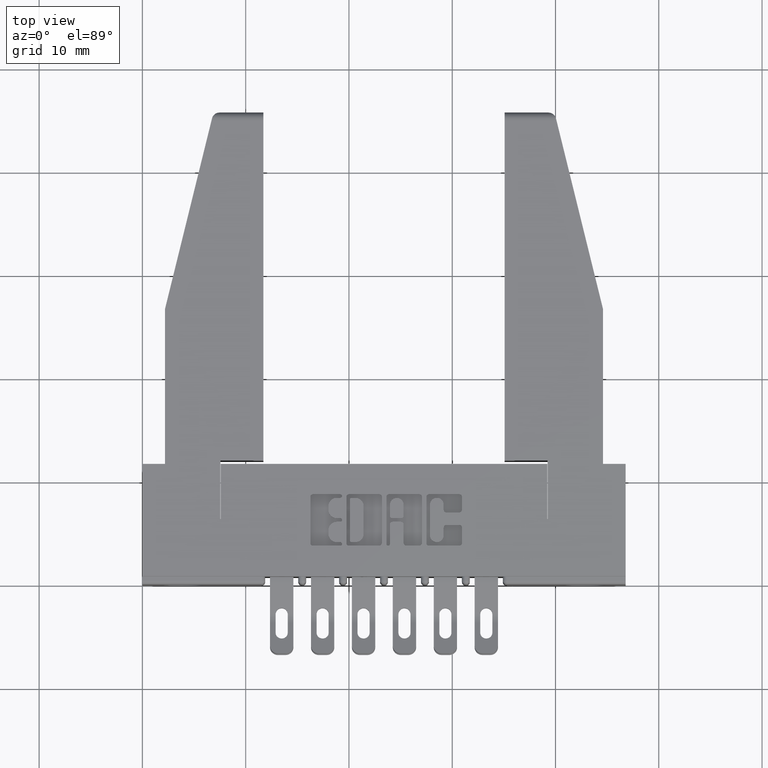
[diagram: clean part render]
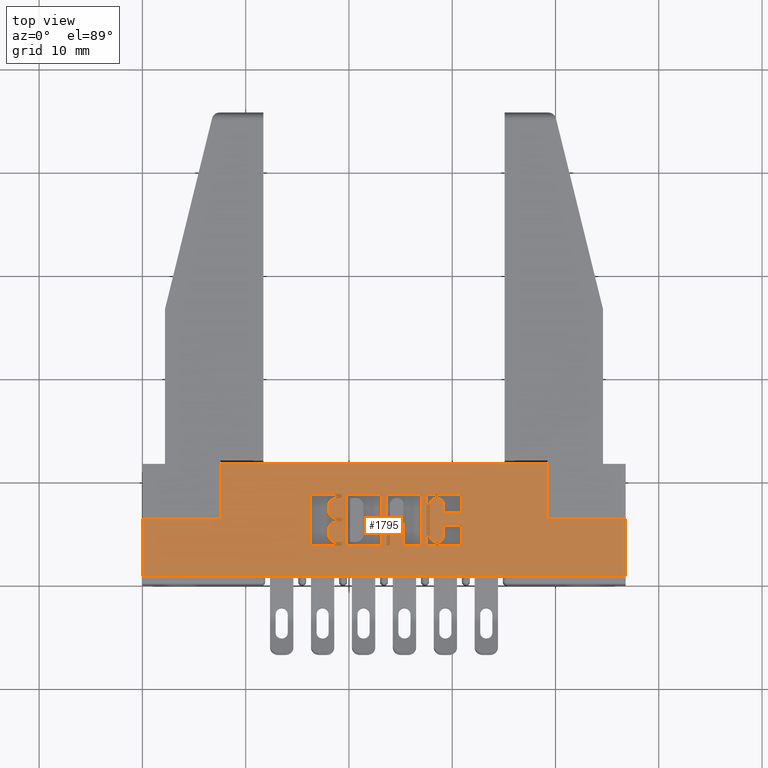
[diagram: same view with one face highlighted and labeled with its STEP entity id]
A machine part, top view. The second image highlights one B-rep face of the part: STEP entity #1795.
In plain terms, the highlighted planar face has unit normal (0, 0, -1).
Its self-contained STEP definition (entity closure, byte-faithful):
#20 = VERTEX_POINT ( 'NONE', #10503 ) ;
#69 = EDGE_CURVE ( 'NONE', #13944, #2360, #13535, .T. ) ;
#70 = DIRECTION ( 'NONE',  ( 1.000000000000000000, 0.0000000000000000000, 0.0000000000000000000 ) ) ;
#81 = EDGE_CURVE ( 'NONE', #10291, #6653, #4121, .T. ) ;
#84 = DIRECTION ( 'NONE',  ( -1.000000000000000000, 0.0000000000000000000, 0.0000000000000000000 ) ) ;
#92 = ORIENTED_EDGE ( 'NONE', *, *, #12675, .F. ) ;
#100 = DIRECTION ( 'NONE',  ( 0.0000000000000000000, -1.000000000000000000, 0.0000000000000000000 ) ) ;
#110 = VECTOR ( 'NONE', #12927, 39.37007874015748100 ) ;
#172 = CARTESIAN_POINT ( 'NONE',  ( 0.7541336065353100300, 0.2523709691426868100, 0.0000000000000000000 ) ) ;
#196 = VERTEX_POINT ( 'NONE', #1103 ) ;
#234 = ORIENTED_EDGE ( 'NONE', *, *, #6462, .F. ) ;
#246 = DIRECTION ( 'NONE',  ( 1.000000000000000000, 0.0000000000000000000, 0.0000000000000000000 ) ) ;
#318 = CIRCLE ( 'NONE', #12551, 0.006870969142663458500 ) ;
#332 = CARTESIAN_POINT ( 'NONE',  ( 1.055229290037011500, 0.3338410318342133800, 0.0000000000000000000 ) ) ;
#338 = EDGE_CURVE ( 'NONE', #8183, #8594, #3945, .T. ) ;
#344 = CARTESIAN_POINT ( 'NONE',  ( 0.0000000000000000000, 0.03100000000000000000, 0.0000000000000000000 ) ) ;
#356 = VECTOR ( 'NONE', #3589, 39.37007874015748100 ) ;
#383 = EDGE_CURVE ( 'NONE', #6653, #2820, #5488, .T. ) ;
#410 = ORIENTED_EDGE ( 'NONE', *, *, #10825, .F. ) ;
#437 = VERTEX_POINT ( 'NONE', #12326 ) ;
#446 = DIRECTION ( 'NONE',  ( -0.0000000000000000000, 0.0000000000000000000, 1.000000000000000000 ) ) ;
#473 = VERTEX_POINT ( 'NONE', #9406 ) ;
#547 = CIRCLE ( 'NONE', #11946, 0.03141014465215624000 ) ;
#551 = ORIENTED_EDGE ( 'NONE', *, *, #10610, .F. ) ;
#560 = LINE ( 'NONE', #9660, #11173 ) ;
#580 = ORIENTED_EDGE ( 'NONE', *, *, #11780, .F. ) ;
#592 = EDGE_CURVE ( 'NONE', #9579, #9090, #4108, .T. ) ;
#612 = DIRECTION ( 'NONE',  ( 1.000000000000000000, 0.0000000000000000000, 0.0000000000000000000 ) ) ;
#626 = VERTEX_POINT ( 'NONE', #4219 ) ;
#630 = ORIENTED_EDGE ( 'NONE', *, *, #7765, .T. ) ;
#647 = CARTESIAN_POINT ( 'NONE',  ( 0.6400264404161154500, 0.3338410318342131000, 0.0000000000000000000 ) ) ;
#659 = DIRECTION ( 'NONE',  ( 0.0000000000000000000, -1.000000000000000000, 0.0000000000000000000 ) ) ;
#738 = VERTEX_POINT ( 'NONE', #172 ) ;
#793 = ORIENTED_EDGE ( 'NONE', *, *, #6871, .F. ) ;
#800 = AXIS2_PLACEMENT_3D ( 'NONE', #9382, #6424, #13811 ) ;
#894 = CIRCLE ( 'NONE', #1281, 0.009815670203806754800 ) ;
#918 = ORIENTED_EDGE ( 'NONE', *, *, #2031, .T. ) ;
#933 = DIRECTION ( 'NONE',  ( 1.000000000000000000, 0.0000000000000000000, 0.0000000000000000000 ) ) ;
#957 = VERTEX_POINT ( 'NONE', #3497 ) ;
#1052 = CARTESIAN_POINT ( 'NONE',  ( 1.065044960240806700, 0.3338410318342039900, 0.0000000000000000000 ) ) ;
#1059 = CIRCLE ( 'NONE', #9379, 0.03141014465218178200 ) ;
#1103 = CARTESIAN_POINT ( 'NONE',  ( 0.9860288151001881400, 0.2386290308573527900, 0.0000000000000000000 ) ) ;
#1110 = CARTESIAN_POINT ( 'NONE',  ( 1.217678631909972200, 0.0000000000000000000, 0.0000000000000000000 ) ) ;
#1113 = CIRCLE ( 'NONE', #3084, 0.009815670203840902800 ) ;
#1122 = CARTESIAN_POINT ( 'NONE',  ( 1.095964321382818300, 0.0000000000000000000, 0.0000000000000000000 ) ) ;
#1146 = ORIENTED_EDGE ( 'NONE', *, *, #592, .F. ) ;
#1149 = DIRECTION ( 'NONE',  ( -1.000000000000000000, 0.0000000000000000000, -0.0000000000000000000 ) ) ;
#1164 = DIRECTION ( 'NONE',  ( 0.0000000000000000000, 1.000000000000000000, -0.0000000000000000000 ) ) ;
#1172 = VERTEX_POINT ( 'NONE', #12540 ) ;
#1184 = VECTOR ( 'NONE', #4339, 39.37007874015748100 ) ;
#1189 = PLANE ( 'NONE',  #7362 ) ;
#1216 = DIRECTION ( 'NONE',  ( 0.0000000000000000000, 1.000000000000000000, -0.0000000000000000000 ) ) ;
#1281 = AXIS2_PLACEMENT_3D ( 'NONE', #3288, #4411, #11974 ) ;
#1289 = EDGE_CURVE ( 'NONE', #7040, #8303, #8314, .T. ) ;
#1325 = CARTESIAN_POINT ( 'NONE',  ( 0.0000000000000000000, 0.3436567020380540400, 0.0000000000000000000 ) ) ;
#1359 = CARTESIAN_POINT ( 'NONE',  ( 0.7541336065353100300, 0.2455000000000233400, 0.0000000000000000000 ) ) ;
#1374 = CIRCLE ( 'NONE', #12454, 0.006870969142648570200 ) ;
#1380 = EDGE_CURVE ( 'NONE', #7696, #13242, #12340, .T. ) ;
#1407 = CARTESIAN_POINT ( 'NONE',  ( 0.9124112885716689800, 0.1571589681657929700, 0.0000000000000000000 ) ) ;
#1445 = VERTEX_POINT ( 'NONE', #5466 ) ;
#1494 = DIRECTION ( 'NONE',  ( -0.0000000000000000000, 0.0000000000000000000, 1.000000000000000000 ) ) ;
#1499 = CARTESIAN_POINT ( 'NONE',  ( 0.9124112885716689800, 0.3338410318342131000, 0.0000000000000000000 ) ) ;
#1523 = CIRCLE ( 'NONE', #10677, 0.009815670203803340800 ) ;
#1547 = VERTEX_POINT ( 'NONE', #7520 ) ;
#1575 = CIRCLE ( 'NONE', #7324, 0.009815670203806754800 ) ;
#1673 = CARTESIAN_POINT ( 'NONE',  ( 1.148478156973179000, 0.2170345564089716800, 0.0000000000000000000 ) ) ;
#1675 = AXIS2_PLACEMENT_3D ( 'NONE', #6403, #7244, #2955 ) ;
#1676 = EDGE_CURVE ( 'NONE', #10910, #12992, #11341, .T. ) ;
#1679 = AXIS2_PLACEMENT_3D ( 'NONE', #6863, #3598, #1702 ) ;
#1685 = EDGE_LOOP ( 'NONE', ( #10451, #7660, #10972, #7263, #11297, #3204, #5583, #6173, #2494, #8694, #9508, #6481, #3805, #11244, #2145, #551, #13052, #7396, #410, #11073 ) ) ;
#1702 = DIRECTION ( 'NONE',  ( 1.000000000000000000, 0.0000000000000000000, 0.0000000000000000000 ) ) ;
#1707 = VECTOR ( 'NONE', #7559, 39.37007874015748100 ) ;
#1770 = DIRECTION ( 'NONE',  ( -0.0000000000000000000, 0.0000000000000000000, 1.000000000000000000 ) ) ;
#1795 = ADVANCED_FACE ( 'NONE', ( #11699, #11865, #5623, #6126, #8472 ), #1189, .F. ) ;
#1797 = LINE ( 'NONE', #10832, #10535 ) ;
#1833 = CARTESIAN_POINT ( 'NONE',  ( 0.9531463199174502500, 0.2386290308573516500, 0.0000000000000000000 ) ) ;
#1885 = CARTESIAN_POINT ( 'NONE',  ( 0.2979999999999999900, 0.2500000000000000600, 0.0000000000000000000 ) ) ;
#1890 = DIRECTION ( 'NONE',  ( 0.0000000000000000000, -1.000000000000000000, 0.0000000000000000000 ) ) ;
#1922 = DIRECTION ( 'NONE',  ( -0.0000000000000000000, 0.0000000000000000000, 1.000000000000000000 ) ) ;
#1976 = CARTESIAN_POINT ( 'NONE',  ( 1.544000000000000300, 0.2500000000000000600, 0.0000000000000000000 ) ) ;
#1988 = DIRECTION ( 'NONE',  ( 0.0000000000000000000, 1.000000000000000000, -0.0000000000000000000 ) ) ;
#1995 = VERTEX_POINT ( 'NONE', #2732 ) ;
#2031 = EDGE_CURVE ( 'NONE', #4791, #957, #7109, .T. ) ;
#2034 = DIRECTION ( 'NONE',  ( 1.000000000000000000, 0.0000000000000000000, 0.0000000000000000000 ) ) ;
#2083 = VERTEX_POINT ( 'NONE', #6869 ) ;
#2106 = CARTESIAN_POINT ( 'NONE',  ( 0.7610045756779734200, 0.2455000000000233400, 0.0000000000000000000 ) ) ;
#2145 = ORIENTED_EDGE ( 'NONE', *, *, #6381, .F. ) ;
#2152 = VECTOR ( 'NONE', #11311, 39.37007874015748100 ) ;
#2187 = VERTEX_POINT ( 'NONE', #9754 ) ;
#2194 = CARTESIAN_POINT ( 'NONE',  ( 0.9025956183678620600, 0.1473432979619861700, 0.0000000000000000000 ) ) ;
#2293 = ORIENTED_EDGE ( 'NONE', *, *, #11564, .F. ) ;
#2321 = EDGE_LOOP ( 'NONE', ( #4016, #5367, #4374, #4749, #2293, #4989, #11586, #12059 ) ) ;
#2360 = VERTEX_POINT ( 'NONE', #9982 ) ;
#2381 = CARTESIAN_POINT ( 'NONE',  ( 0.7541336064154143800, 0.1473432979619887000, 0.0000000000000000000 ) ) ;
#2410 = VECTOR ( 'NONE', #1988, 39.37007874015748100 ) ;
#2493 = DIRECTION ( 'NONE',  ( 1.000000000000000000, 6.876017002796124400E-015, 0.0000000000000000000 ) ) ;
#2494 = ORIENTED_EDGE ( 'NONE', *, *, #12191, .F. ) ;
#2506 = VERTEX_POINT ( 'NONE', #9050 ) ;
#2562 = CIRCLE ( 'NONE', #13335, 0.009815670203805936000 ) ;
#2603 = CARTESIAN_POINT ( 'NONE',  ( 1.005660155507788000, 0.1571589681657908600, 0.0000000000000000000 ) ) ;
#2621 = VECTOR ( 'NONE', #8941, 39.37007874015748100 ) ;
#2636 = AXIS2_PLACEMENT_3D ( 'NONE', #10434, #3889, #7284 ) ;
#2637 = LINE ( 'NONE', #5277, #3142 ) ;
#2661 = CARTESIAN_POINT ( 'NONE',  ( 0.9433306497136468800, 0.2288133606535486000, 0.0000000000000000000 ) ) ;
#2685 = DIRECTION ( 'NONE',  ( 1.000000000000000000, 0.0000000000000000000, 0.0000000000000000000 ) ) ;
#2698 = CARTESIAN_POINT ( 'NONE',  ( 1.082222383097458700, 0.1571589681657929700, 0.0000000000000000000 ) ) ;
#2732 = CARTESIAN_POINT ( 'NONE',  ( 1.148478156973165900, 0.3036578454992628900, 0.0000000000000000000 ) ) ;
#2820 = VERTEX_POINT ( 'NONE', #13045 ) ;
#2871 = CIRCLE ( 'NONE', #7833, 0.009815670203806891800 ) ;
#2891 = DIRECTION ( 'NONE',  ( 1.000000000000000000, 0.0000000000000000000, 0.0000000000000000000 ) ) ;
#2951 = CARTESIAN_POINT ( 'NONE',  ( 1.082222383097458700, 0.3338410318342131000, 0.0000000000000000000 ) ) ;
#2955 = DIRECTION ( 'NONE',  ( 1.000000000000000000, 0.0000000000000000000, 0.0000000000000000000 ) ) ;
#3024 = ORIENTED_EDGE ( 'NONE', *, *, #6329, .F. ) ;
#3029 = DIRECTION ( 'NONE',  ( 1.000000000000000000, 0.0000000000000000000, 0.0000000000000000000 ) ) ;
#3051 = EDGE_CURVE ( 'NONE', #5916, #3147, #2871, .T. ) ;
#3084 = AXIS2_PLACEMENT_3D ( 'NONE', #6558, #4338, #10930 ) ;
#3118 = CARTESIAN_POINT ( 'NONE',  ( -0.0000000000000000000, 0.3436567020380095800, 0.0000000000000000000 ) ) ;
#3126 = CARTESIAN_POINT ( 'NONE',  ( 0.9295887114283308800, 0.3338410318342131000, 0.0000000000000000000 ) ) ;
#3142 = VECTOR ( 'NONE', #7574, 39.37007874015748100 ) ;
#3147 = VERTEX_POINT ( 'NONE', #1407 ) ;
#3185 = DIRECTION ( 'NONE',  ( 1.000000000000000000, 0.0000000000000000000, 0.0000000000000000000 ) ) ;
#3186 = CARTESIAN_POINT ( 'NONE',  ( 0.9394043816321274700, 0.3338410318342131000, 0.0000000000000000000 ) ) ;
#3204 = ORIENTED_EDGE ( 'NONE', *, *, #8552, .F. ) ;
#3211 = ORIENTED_EDGE ( 'NONE', *, *, #7206, .F. ) ;
#3228 = CARTESIAN_POINT ( 'NONE',  ( 1.148478156973179000, 0.1873421540424559900, 0.0000000000000000000 ) ) ;
#3237 = VECTOR ( 'NONE', #1890, 39.37007874015748100 ) ;
#3261 = EDGE_CURVE ( 'NONE', #9215, #9579, #9577, .T. ) ;
#3273 = CARTESIAN_POINT ( 'NONE',  ( 1.122221239177992200, 0.3036578459575325900, 0.0000000000000000000 ) ) ;
#3288 = CARTESIAN_POINT ( 'NONE',  ( 1.092038053301265200, 0.1571589681657929700, 0.0000000000000000000 ) ) ;
#3317 = VECTOR ( 'NONE', #1216, 39.37007874015748100 ) ;
#3414 = EDGE_CURVE ( 'NONE', #10034, #11051, #7049, .T. ) ;
#3438 = LINE ( 'NONE', #1110, #2621 ) ;
#3463 = DIRECTION ( 'NONE',  ( -1.000000000000000000, 0.0000000000000000000, 0.0000000000000000000 ) ) ;
#3493 = DIRECTION ( 'NONE',  ( -0.0000000000000000000, 0.0000000000000000000, 1.000000000000000000 ) ) ;
#3495 = VECTOR ( 'NONE', #11478, 39.37007874015748100 ) ;
#3497 = CARTESIAN_POINT ( 'NONE',  ( 0.7406370600050840000, 0.2523709691426868100, 0.0000000000000000000 ) ) ;
#3503 = CARTESIAN_POINT ( 'NONE',  ( 1.158293827176966900, 0.2268502266127605200, 0.0000000000000000000 ) ) ;
#3589 = DIRECTION ( 'NONE',  ( 0.0000000000000000000, 1.000000000000000000, -0.0000000000000000000 ) ) ;
#3598 = DIRECTION ( 'NONE',  ( -0.0000000000000000000, 0.0000000000000000000, 1.000000000000000000 ) ) ;
#3609 = DIRECTION ( 'NONE',  ( -0.0000000000000000000, 0.0000000000000000000, 1.000000000000000000 ) ) ;
#3662 = DIRECTION ( 'NONE',  ( 1.000000000000000000, 0.0000000000000000000, 0.0000000000000000000 ) ) ;
#3699 = CARTESIAN_POINT ( 'NONE',  ( 1.095964321382818300, 0.3036578459575325900, 0.0000000000000000000 ) ) ;
#3702 = ORIENTED_EDGE ( 'NONE', *, *, #3051, .F. ) ;
#3765 = VECTOR ( 'NONE', #100, 39.37007874015748100 ) ;
#3779 = CARTESIAN_POINT ( 'NONE',  ( 0.9025956183678961500, 0.3436567020380540400, 0.0000000000000000000 ) ) ;
#3805 = ORIENTED_EDGE ( 'NONE', *, *, #383, .F. ) ;
#3820 = CARTESIAN_POINT ( 'NONE',  ( 0.6498421106199380200, 0.3436567020380357200, 0.0000000000000000000 ) ) ;
#3857 = EDGE_CURVE ( 'NONE', #10854, #8583, #13418, .T. ) ;
#3885 = CIRCLE ( 'NONE', #8412, 0.009815670203840084000 ) ;
#3889 = DIRECTION ( 'NONE',  ( -0.0000000000000000000, 0.0000000000000000000, 1.000000000000000000 ) ) ;
#3890 = EDGE_CURVE ( 'NONE', #1445, #5585, #11600, .T. ) ;
#3898 = VECTOR ( 'NONE', #5819, 39.37007874015748100 ) ;
#3915 = DIRECTION ( 'NONE',  ( 1.000000000000000000, 0.0000000000000000000, 0.0000000000000000000 ) ) ;
#3919 = CIRCLE ( 'NONE', #8591, 0.009815670203804980100 ) ;
#3924 = CARTESIAN_POINT ( 'NONE',  ( 0.7541336065353512200, 0.3367857328953892100, 0.0000000000000000000 ) ) ;
#3945 = CIRCLE ( 'NONE', #7707, 0.006870969142663458500 ) ;
#4016 = ORIENTED_EDGE ( 'NONE', *, *, #13117, .F. ) ;
#4067 = AXIS2_PLACEMENT_3D ( 'NONE', #11703, #8478, #2034 ) ;
#4103 = VERTEX_POINT ( 'NONE', #10528 ) ;
#4108 = CIRCLE ( 'NONE', #12054, 0.009815670203822599700 ) ;
#4118 = CARTESIAN_POINT ( 'NONE',  ( 0.7541336065353512200, 0.3436567020380357200, 0.0000000000000000000 ) ) ;
#4121 = LINE ( 'NONE', #6368, #5141 ) ;
#4219 = CARTESIAN_POINT ( 'NONE',  ( 0.7092269153529278100, 0.2072188862052035400, 0.0000000000000000000 ) ) ;
#4225 = EDGE_CURVE ( 'NONE', #6489, #5585, #9856, .T. ) ;
#4234 = EDGE_CURVE ( 'NONE', #196, #11007, #7187, .T. ) ;
#4235 = LINE ( 'NONE', #11576, #10472 ) ;
#4255 = CARTESIAN_POINT ( 'NONE',  ( 1.842000000000000100, 0.03100000000000000000, 0.0000000000000000000 ) ) ;
#4338 = DIRECTION ( 'NONE',  ( -0.0000000000000000000, 0.0000000000000000000, 1.000000000000000000 ) ) ;
#4339 = DIRECTION ( 'NONE',  ( 1.000000000000000000, 0.0000000000000000000, 0.0000000000000000000 ) ) ;
#4348 = EDGE_CURVE ( 'NONE', #8509, #10594, #10723, .T. ) ;
#4349 = CIRCLE ( 'NONE', #1675, 0.009815670203841039800 ) ;
#4374 = ORIENTED_EDGE ( 'NONE', *, *, #5012, .F. ) ;
#4406 = CIRCLE ( 'NONE', #2636, 0.006870969142648570200 ) ;
#4411 = DIRECTION ( 'NONE',  ( -0.0000000000000000000, 0.0000000000000000000, 1.000000000000000000 ) ) ;
#4419 = EDGE_CURVE ( 'NONE', #9553, #11749, #5352, .T. ) ;
#4554 = LINE ( 'NONE', #7979, #356 ) ;
#4564 = LINE ( 'NONE', #12396, #3898 ) ;
#4576 = DIRECTION ( 'NONE',  ( 1.000000000000000000, 0.0000000000000000000, 0.0000000000000000000 ) ) ;
#4603 = AXIS2_PLACEMENT_3D ( 'NONE', #12131, #3493, #4576 ) ;
#4609 = DIRECTION ( 'NONE',  ( 1.000000000000000000, 0.0000000000000000000, 0.0000000000000000000 ) ) ;
#4633 = CIRCLE ( 'NONE', #10781, 0.009815670203811535700 ) ;
#4650 = CARTESIAN_POINT ( 'NONE',  ( 0.0000000000000000000, 0.4600000000000000200, 0.0000000000000000000 ) ) ;
#4666 = DIRECTION ( 'NONE',  ( 1.000000000000000000, 0.0000000000000000000, 0.0000000000000000000 ) ) ;
#4706 = CARTESIAN_POINT ( 'NONE',  ( 1.158293827176977400, 0.2842718973050482000, 0.0000000000000000000 ) ) ;
#4749 = ORIENTED_EDGE ( 'NONE', *, *, #5822, .F. ) ;
#4785 = ORIENTED_EDGE ( 'NONE', *, *, #7946, .F. ) ;
#4791 = VERTEX_POINT ( 'NONE', #10511 ) ;
#4820 = DIRECTION ( 'NONE',  ( 1.000000000000000000, 0.0000000000000000000, 0.0000000000000000000 ) ) ;
#4834 = CARTESIAN_POINT ( 'NONE',  ( 1.148478156973179000, 0.0000000000000000000, 0.0000000000000000000 ) ) ;
#4878 = EDGE_CURVE ( 'NONE', #20, #11897, #1797, .T. ) ;
#4909 = DIRECTION ( 'NONE',  ( -0.0000000000000000000, 0.0000000000000000000, 1.000000000000000000 ) ) ;
#4937 = ORIENTED_EDGE ( 'NONE', *, *, #69, .F. ) ;
#4969 = EDGE_CURVE ( 'NONE', #1547, #11444, #3438, .T. ) ;
#4989 = ORIENTED_EDGE ( 'NONE', *, *, #4878, .T. ) ;
#4993 = DIRECTION ( 'NONE',  ( 1.000000000000000000, 0.0000000000000000000, 0.0000000000000000000 ) ) ;
#4999 = DIRECTION ( 'NONE',  ( -1.000000000000000000, 0.0000000000000000000, 0.0000000000000000000 ) ) ;
#5012 = EDGE_CURVE ( 'NONE', #2187, #8583, #7498, .T. ) ;
#5028 = ORIENTED_EDGE ( 'NONE', *, *, #8198, .T. ) ;
#5035 = LINE ( 'NONE', #9990, #7054 ) ;
#5077 = VECTOR ( 'NONE', #5472, 39.37007874015748100 ) ;
#5125 = CARTESIAN_POINT ( 'NONE',  ( 1.842000000000000100, 0.2500000000000000600, 0.0000000000000000000 ) ) ;
#5141 = VECTOR ( 'NONE', #7442, 39.37007874015748100 ) ;
#5171 = VECTOR ( 'NONE', #13066, 39.37007874015748100 ) ;
#5191 = CARTESIAN_POINT ( 'NONE',  ( 1.217678631909940200, 0.0000000000000000000, 0.0000000000000000000 ) ) ;
#5221 = DIRECTION ( 'NONE',  ( -0.0000000000000000000, 1.000000000000000000, -0.0000000000000000000 ) ) ;
#5232 = DIRECTION ( 'NONE',  ( 1.000000000000000000, 0.0000000000000000000, 0.0000000000000000000 ) ) ;
#5238 = CIRCLE ( 'NONE', #7614, 0.02625691779517367100 ) ;
#5277 = CARTESIAN_POINT ( 'NONE',  ( 1.842000000000000100, 0.03100000000000000000, 0.0000000000000000000 ) ) ;
#5315 = VERTEX_POINT ( 'NONE', #5436 ) ;
#5318 = CARTESIAN_POINT ( 'NONE',  ( 1.148478156973165900, 0.2842718973050482000, 0.0000000000000000000 ) ) ;
#5328 = VECTOR ( 'NONE', #659, 39.37007874015748100 ) ;
#5352 = LINE ( 'NONE', #5636, #13580 ) ;
#5367 = ORIENTED_EDGE ( 'NONE', *, *, #3857, .T. ) ;
#5407 = CARTESIAN_POINT ( 'NONE',  ( 0.7406370600051254100, 0.3299147637527386500, 0.0000000000000000000 ) ) ;
#5436 = CARTESIAN_POINT ( 'NONE',  ( 1.207862961706168200, 0.3436567020380540400, 0.0000000000000000000 ) ) ;
#5463 = AXIS2_PLACEMENT_3D ( 'NONE', #7738, #11997, #246 ) ;
#5466 = CARTESIAN_POINT ( 'NONE',  ( 0.9295887114283308800, 0.1542142671046509700, 0.0000000000000000000 ) ) ;
#5472 = DIRECTION ( 'NONE',  ( 0.0000000000000000000, -1.000000000000000000, 0.0000000000000000000 ) ) ;
#5488 = CIRCLE ( 'NONE', #1679, 0.009815670203806345400 ) ;
#5512 = CARTESIAN_POINT ( 'NONE',  ( 1.158293827176977400, 0.2744562271012366300, 0.0000000000000000000 ) ) ;
#5523 = ORIENTED_EDGE ( 'NONE', *, *, #8315, .F. ) ;
#5574 = EDGE_CURVE ( 'NONE', #13308, #10623, #1113, .T. ) ;
#5576 = ORIENTED_EDGE ( 'NONE', *, *, #10120, .F. ) ;
#5583 = ORIENTED_EDGE ( 'NONE', *, *, #11421, .T. ) ;
#5585 = VERTEX_POINT ( 'NONE', #3126 ) ;
#5588 = CARTESIAN_POINT ( 'NONE',  ( 0.9433306497136468800, 0.1542142671046509700, 0.0000000000000000000 ) ) ;
#5622 = LINE ( 'NONE', #8424, #2410 ) ;
#5623 = FACE_OUTER_BOUND ( 'NONE', #2321, .T. ) ;
#5636 = CARTESIAN_POINT ( 'NONE',  ( 0.9433306497136468800, 0.0000000000000000000, 0.0000000000000000000 ) ) ;
#5776 = CARTESIAN_POINT ( 'NONE',  ( 0.0000000000000000000, 0.3436567020380357200, 0.0000000000000000000 ) ) ;
#5819 = DIRECTION ( 'NONE',  ( 1.000000000000000000, 0.0000000000000000000, 0.0000000000000000000 ) ) ;
#5822 = EDGE_CURVE ( 'NONE', #11638, #2187, #7643, .T. ) ;
#5840 = VERTEX_POINT ( 'NONE', #12630 ) ;
#5901 = CIRCLE ( 'NONE', #5463, 0.02625691779518022500 ) ;
#5916 = VERTEX_POINT ( 'NONE', #2194 ) ;
#5970 = DIRECTION ( 'NONE',  ( -0.0000000000000000000, 0.0000000000000000000, 1.000000000000000000 ) ) ;
#5988 = EDGE_CURVE ( 'NONE', #1995, #9225, #560, .T. ) ;
#6125 = VECTOR ( 'NONE', #84, 39.37007874015748100 ) ;
#6126 = FACE_BOUND ( 'NONE', #6383, .T. ) ;
#6173 = ORIENTED_EDGE ( 'NONE', *, *, #13968, .F. ) ;
#6194 = EDGE_CURVE ( 'NONE', #473, #1547, #3919, .T. ) ;
#6215 = VECTOR ( 'NONE', #4999, 39.37007874015748100 ) ;
#6246 = ORIENTED_EDGE ( 'NONE', *, *, #13666, .F. ) ;
#6272 = LINE ( 'NONE', #8320, #3237 ) ;
#6287 = CARTESIAN_POINT ( 'NONE',  ( 0.0000000000000000000, 0.2500000000000000600, 0.0000000000000000000 ) ) ;
#6327 = VECTOR ( 'NONE', #10928, 39.37007874015748100 ) ;
#6329 = EDGE_CURVE ( 'NONE', #2360, #1172, #1575, .T. ) ;
#6359 = EDGE_CURVE ( 'NONE', #2506, #626, #5622, .T. ) ;
#6368 = CARTESIAN_POINT ( 'NONE',  ( -0.0000000000000000000, 0.1473432979619861700, 0.0000000000000000000 ) ) ;
#6373 = ORIENTED_EDGE ( 'NONE', *, *, #6359, .F. ) ;
#6381 = EDGE_CURVE ( 'NONE', #11987, #10291, #894, .T. ) ;
#6383 = EDGE_LOOP ( 'NONE', ( #13152, #8194, #3702, #7387, #3024, #4937, #13157, #10298 ) ) ;
#6394 = DIRECTION ( 'NONE',  ( -0.0000000000000000000, 0.0000000000000000000, 1.000000000000000000 ) ) ;
#6402 = VERTEX_POINT ( 'NONE', #5512 ) ;
#6403 = CARTESIAN_POINT ( 'NONE',  ( 0.9025956183678279800, 0.3338410318342129300, 0.0000000000000000000 ) ) ;
#6424 = DIRECTION ( 'NONE',  ( -0.0000000000000000000, 0.0000000000000000000, 1.000000000000000000 ) ) ;
#6441 = VERTEX_POINT ( 'NONE', #6629 ) ;
#6460 = CARTESIAN_POINT ( 'NONE',  ( 1.092038053301265200, 0.1473432979619861700, 0.0000000000000000000 ) ) ;
#6462 = EDGE_CURVE ( 'NONE', #4103, #8727, #10497, .T. ) ;
#6470 = CARTESIAN_POINT ( 'NONE',  ( 0.0000000000000000000, 0.4600000000000000200, 0.0000000000000000000 ) ) ;
#6481 = ORIENTED_EDGE ( 'NONE', *, *, #10128, .F. ) ;
#6489 = VERTEX_POINT ( 'NONE', #7802 ) ;
#6532 = EDGE_CURVE ( 'NONE', #2083, #626, #547, .T. ) ;
#6534 = VERTEX_POINT ( 'NONE', #9860 ) ;
#6558 = CARTESIAN_POINT ( 'NONE',  ( 1.092038053301299400, 0.3338410318342131000, 0.0000000000000000000 ) ) ;
#6584 = DIRECTION ( 'NONE',  ( -0.0000000000000000000, 0.0000000000000000000, 1.000000000000000000 ) ) ;
#6605 = VECTOR ( 'NONE', #11828, 39.37007874015748100 ) ;
#6629 = CARTESIAN_POINT ( 'NONE',  ( 1.095964321382818300, 0.1873421540424559900, 0.0000000000000000000 ) ) ;
#6653 = VERTEX_POINT ( 'NONE', #13396 ) ;
#6697 = LINE ( 'NONE', #11142, #8217 ) ;
#6703 = DIRECTION ( 'NONE',  ( 0.0000000000000000000, -1.000000000000000000, 0.0000000000000000000 ) ) ;
#6704 = ORIENTED_EDGE ( 'NONE', *, *, #1676, .F. ) ;
#6711 = ORIENTED_EDGE ( 'NONE', *, *, #4225, .F. ) ;
#6767 = LINE ( 'NONE', #12220, #11151 ) ;
#6843 = EDGE_CURVE ( 'NONE', #5315, #13308, #8966, .T. ) ;
#6863 = CARTESIAN_POINT ( 'NONE',  ( 1.207862961706134300, 0.1571589681657929700, 0.0000000000000000000 ) ) ;
#6866 = ORIENTED_EDGE ( 'NONE', *, *, #338, .F. ) ;
#6869 = CARTESIAN_POINT ( 'NONE',  ( 0.7406370600050840000, 0.2386290308573598100, 0.0000000000000000000 ) ) ;
#6871 = EDGE_CURVE ( 'NONE', #2083, #8183, #11520, .T. ) ;
#6900 = LINE ( 'NONE', #6287, #1184 ) ;
#6917 = DIRECTION ( 'NONE',  ( -0.0000000000000000000, 0.0000000000000000000, 1.000000000000000000 ) ) ;
#6924 = CIRCLE ( 'NONE', #9211, 0.009815670203795690700 ) ;
#6961 = DIRECTION ( 'NONE',  ( 1.000000000000000000, 0.0000000000000000000, 0.0000000000000000000 ) ) ;
#7017 = EDGE_CURVE ( 'NONE', #11345, #10522, #12663, .T. ) ;
#7040 = VERTEX_POINT ( 'NONE', #3779 ) ;
#7042 = DIRECTION ( 'NONE',  ( 1.000000000000000000, 0.0000000000000000000, 0.0000000000000000000 ) ) ;
#7049 = LINE ( 'NONE', #11529, #3495 ) ;
#7053 = EDGE_CURVE ( 'NONE', #6402, #473, #4564, .T. ) ;
#7054 = VECTOR ( 'NONE', #8867, 39.37007874015748100 ) ;
#7068 = CARTESIAN_POINT ( 'NONE',  ( 1.842000000000000100, 0.2500000000000000600, 0.0000000000000000000 ) ) ;
#7089 = EDGE_CURVE ( 'NONE', #3147, #12804, #6767, .T. ) ;
#7109 = CIRCLE ( 'NONE', #10879, 0.03141014465217454400 ) ;
#7139 = CARTESIAN_POINT ( 'NONE',  ( 0.7867707099630101300, 0.3436567020380540400, 0.0000000000000000000 ) ) ;
#7187 = LINE ( 'NONE', #11911, #110 ) ;
#7206 = EDGE_CURVE ( 'NONE', #6534, #4103, #2562, .T. ) ;
#7214 = CARTESIAN_POINT ( 'NONE',  ( 1.207862961706132100, 0.3338410318342139900, 0.0000000000000000000 ) ) ;
#7225 = CIRCLE ( 'NONE', #7505, 0.009815670203840902800 ) ;
#7244 = DIRECTION ( 'NONE',  ( -0.0000000000000000000, 0.0000000000000000000, 1.000000000000000000 ) ) ;
#7252 = CARTESIAN_POINT ( 'NONE',  ( 1.005660155507785800, 0.1473432979619875800, 0.0000000000000000000 ) ) ;
#7263 = ORIENTED_EDGE ( 'NONE', *, *, #5988, .F. ) ;
#7270 = ORIENTED_EDGE ( 'NONE', *, *, #7806, .T. ) ;
#7276 = LINE ( 'NONE', #8374, #5077 ) ;
#7284 = DIRECTION ( 'NONE',  ( 1.000000000000000000, 0.0000000000000000000, 0.0000000000000000000 ) ) ;
#7324 = AXIS2_PLACEMENT_3D ( 'NONE', #13741, #8375, #5232 ) ;
#7362 = AXIS2_PLACEMENT_3D ( 'NONE', #6470, #7593, #1149 ) ;
#7387 = ORIENTED_EDGE ( 'NONE', *, *, #9726, .F. ) ;
#7396 = ORIENTED_EDGE ( 'NONE', *, *, #6843, .F. ) ;
#7442 = DIRECTION ( 'NONE',  ( 1.000000000000000000, 0.0000000000000000000, 0.0000000000000000000 ) ) ;
#7470 = VECTOR ( 'NONE', #10381, 39.37007874015748100 ) ;
#7498 = LINE ( 'NONE', #4650, #6327 ) ;
#7505 = AXIS2_PLACEMENT_3D ( 'NONE', #12218, #1494, #12266 ) ;
#7518 = CARTESIAN_POINT ( 'NONE',  ( 0.0000000000000000000, 0.3436567020380540400, 0.0000000000000000000 ) ) ;
#7520 = CARTESIAN_POINT ( 'NONE',  ( 1.217678631909972200, 0.2842718973050416500, 0.0000000000000000000 ) ) ;
#7529 = VERTEX_POINT ( 'NONE', #1673 ) ;
#7547 = ORIENTED_EDGE ( 'NONE', *, *, #11484, .F. ) ;
#7559 = DIRECTION ( 'NONE',  ( 0.0000000000000000000, 1.000000000000000000, -0.0000000000000000000 ) ) ;
#7570 = ORIENTED_EDGE ( 'NONE', *, *, #4419, .T. ) ;
#7574 = DIRECTION ( 'NONE',  ( -1.000000000000000000, -0.0000000000000000000, -0.0000000000000000000 ) ) ;
#7593 = DIRECTION ( 'NONE',  ( 0.0000000000000000000, 0.0000000000000000000, -1.000000000000000000 ) ) ;
#7594 = DIRECTION ( 'NONE',  ( -0.0000000000000000000, -1.000000000000000000, -0.0000000000000000000 ) ) ;
#7614 = AXIS2_PLACEMENT_3D ( 'NONE', #3273, #9632, #3185 ) ;
#7635 = VECTOR ( 'NONE', #3463, 39.37007874015748100 ) ;
#7640 = EDGE_CURVE ( 'NONE', #2506, #437, #1059, .T. ) ;
#7643 = LINE ( 'NONE', #10553, #13537 ) ;
#7660 = ORIENTED_EDGE ( 'NONE', *, *, #7053, .F. ) ;
#7696 = VERTEX_POINT ( 'NONE', #8343 ) ;
#7703 = CARTESIAN_POINT ( 'NONE',  ( 0.9025956183678620600, 0.1571589681657929700, 0.0000000000000000000 ) ) ;
#7707 = AXIS2_PLACEMENT_3D ( 'NONE', #11349, #12288, #9027 ) ;
#7714 = VECTOR ( 'NONE', #11964, 39.37007874015748100 ) ;
#7728 = EDGE_CURVE ( 'NONE', #1445, #11749, #12165, .T. ) ;
#7738 = CARTESIAN_POINT ( 'NONE',  ( 1.122221239177998700, 0.1873421540424559900, 0.0000000000000000000 ) ) ;
#7765 = EDGE_CURVE ( 'NONE', #8509, #10176, #11855, .T. ) ;
#7802 = CARTESIAN_POINT ( 'NONE',  ( 0.9394043816321274700, 0.3436567020380095800, 0.0000000000000000000 ) ) ;
#7806 = EDGE_CURVE ( 'NONE', #6489, #10400, #9959, .T. ) ;
#7833 = AXIS2_PLACEMENT_3D ( 'NONE', #7703, #446, #4820 ) ;
#7842 = ORIENTED_EDGE ( 'NONE', *, *, #6532, .T. ) ;
#7944 = ORIENTED_EDGE ( 'NONE', *, *, #4234, .T. ) ;
#7946 = EDGE_CURVE ( 'NONE', #9090, #6534, #7276, .T. ) ;
#7979 = CARTESIAN_POINT ( 'NONE',  ( 0.9958444853039847300, 0.0000000000000000000, 0.0000000000000000000 ) ) ;
#8005 = LINE ( 'NONE', #4834, #5328 ) ;
#8045 = LINE ( 'NONE', #12935, #7714 ) ;
#8046 = VERTEX_POINT ( 'NONE', #3503 ) ;
#8090 = CARTESIAN_POINT ( 'NONE',  ( 1.207862961706167100, 0.2842718973050416500, 0.0000000000000000000 ) ) ;
#8172 = CARTESIAN_POINT ( 'NONE',  ( 1.065044960240806700, 0.1571589681657838100, 0.0000000000000000000 ) ) ;
#8183 = VERTEX_POINT ( 'NONE', #11290 ) ;
#8194 = ORIENTED_EDGE ( 'NONE', *, *, #7089, .F. ) ;
#8195 = DIRECTION ( 'NONE',  ( -0.0000000000000000000, 0.0000000000000000000, 1.000000000000000000 ) ) ;
#8198 = EDGE_CURVE ( 'NONE', #11154, #11099, #4554, .T. ) ;
#8217 = VECTOR ( 'NONE', #12268, 39.37007874015748100 ) ;
#8225 = VECTOR ( 'NONE', #11324, 39.37007874015748100 ) ;
#8242 = VECTOR ( 'NONE', #1164, 39.37007874015748100 ) ;
#8303 = VERTEX_POINT ( 'NONE', #7139 ) ;
#8314 = LINE ( 'NONE', #1325, #7635 ) ;
#8315 = EDGE_CURVE ( 'NONE', #10594, #5840, #1374, .T. ) ;
#8320 = CARTESIAN_POINT ( 'NONE',  ( 1.082222383097458700, 0.0000000000000000000, 0.0000000000000000000 ) ) ;
#8321 = CARTESIAN_POINT ( 'NONE',  ( 0.0000000000000000000, 0.1473432979619875800, 0.0000000000000000000 ) ) ;
#8343 = CARTESIAN_POINT ( 'NONE',  ( 1.055229290037010600, 0.1473432979619875800, 0.0000000000000000000 ) ) ;
#8374 = CARTESIAN_POINT ( 'NONE',  ( 0.6400264404161154500, 0.0000000000000000000, 0.0000000000000000000 ) ) ;
#8375 = DIRECTION ( 'NONE',  ( -0.0000000000000000000, 0.0000000000000000000, 1.000000000000000000 ) ) ;
#8410 = CARTESIAN_POINT ( 'NONE',  ( 0.9958444853039847300, 0.2288133606535464300, 0.0000000000000000000 ) ) ;
#8412 = AXIS2_PLACEMENT_3D ( 'NONE', #7214, #12721, #13809 ) ;
#8424 = CARTESIAN_POINT ( 'NONE',  ( 0.7092269153529278100, 0.0000000000000000000, 0.0000000000000000000 ) ) ;
#8425 = VERTEX_POINT ( 'NONE', #5125 ) ;
#8464 = DIRECTION ( 'NONE',  ( 1.000000000000000000, 0.0000000000000000000, 0.0000000000000000000 ) ) ;
#8472 = FACE_BOUND ( 'NONE', #11809, .T. ) ;
#8478 = DIRECTION ( 'NONE',  ( -0.0000000000000000000, 0.0000000000000000000, 1.000000000000000000 ) ) ;
#8509 = VERTEX_POINT ( 'NONE', #5407 ) ;
#8513 = VERTEX_POINT ( 'NONE', #3228 ) ;
#8552 = EDGE_CURVE ( 'NONE', #6441, #13911, #13148, .T. ) ;
#8578 = CARTESIAN_POINT ( 'NONE',  ( 0.7769550397591692400, 0.0000000000000000000, 0.0000000000000000000 ) ) ;
#8583 = VERTEX_POINT ( 'NONE', #12971 ) ;
#8591 = AXIS2_PLACEMENT_3D ( 'NONE', #8090, #11461, #4993 ) ;
#8594 = VERTEX_POINT ( 'NONE', #2106 ) ;
#8612 = VERTEX_POINT ( 'NONE', #4255 ) ;
#8693 = CARTESIAN_POINT ( 'NONE',  ( 1.158293827176966900, 0.2170345564089725400, 0.0000000000000000000 ) ) ;
#8694 = ORIENTED_EDGE ( 'NONE', *, *, #12525, .F. ) ;
#8704 = CARTESIAN_POINT ( 'NONE',  ( 0.7092269153529094900, 0.2985046191005228400, 0.0000000000000000000 ) ) ;
#8727 = VERTEX_POINT ( 'NONE', #2381 ) ;
#8741 = DIRECTION ( 'NONE',  ( 1.000000000000000000, 0.0000000000000000000, 0.0000000000000000000 ) ) ;
#8788 = CARTESIAN_POINT ( 'NONE',  ( 1.055229290037013900, 0.3436567020380095800, 0.0000000000000000000 ) ) ;
#8829 = CARTESIAN_POINT ( 'NONE',  ( 1.544000000000000300, 0.2500000000000000600, 0.0000000000000000000 ) ) ;
#8855 = CARTESIAN_POINT ( 'NONE',  ( 1.217678631909940200, 0.2170345564089734300, 0.0000000000000000000 ) ) ;
#8867 = DIRECTION ( 'NONE',  ( -1.000000000000000000, 0.0000000000000000000, 0.0000000000000000000 ) ) ;
#8880 = ORIENTED_EDGE ( 'NONE', *, *, #12025, .T. ) ;
#8941 = DIRECTION ( 'NONE',  ( 0.0000000000000000000, 1.000000000000000000, -0.0000000000000000000 ) ) ;
#8966 = LINE ( 'NONE', #7518, #6125 ) ;
#9021 = CARTESIAN_POINT ( 'NONE',  ( 0.7610045756779977300, 0.1542142671046509700, 0.0000000000000000000 ) ) ;
#9027 = DIRECTION ( 'NONE',  ( 1.000000000000000000, 0.0000000000000000000, 0.0000000000000000000 ) ) ;
#9033 = LINE ( 'NONE', #7068, #2152 ) ;
#9050 = CARTESIAN_POINT ( 'NONE',  ( 0.7092269153529278100, 0.1924953808994933600, 0.0000000000000000000 ) ) ;
#9090 = VERTEX_POINT ( 'NONE', #647 ) ;
#9132 = VECTOR ( 'NONE', #12670, 39.37007874015748100 ) ;
#9191 = CARTESIAN_POINT ( 'NONE',  ( 0.7406370600051095400, 0.1924953808994933600, 0.0000000000000000000 ) ) ;
#9211 = AXIS2_PLACEMENT_3D ( 'NONE', #332, #13414, #6961 ) ;
#9212 = CARTESIAN_POINT ( 'NONE',  ( 1.207862961706156700, 0.2268502266127605200, 0.0000000000000000000 ) ) ;
#9215 = VERTEX_POINT ( 'NONE', #4118 ) ;
#9225 = VERTEX_POINT ( 'NONE', #5318 ) ;
#9239 = ORIENTED_EDGE ( 'NONE', *, *, #7728, .F. ) ;
#9306 = VECTOR ( 'NONE', #2685, 39.37007874015748100 ) ;
#9379 = AXIS2_PLACEMENT_3D ( 'NONE', #9191, #12390, #10269 ) ;
#9382 = CARTESIAN_POINT ( 'NONE',  ( 0.7406370600051254100, 0.2985046191005228400, 0.0000000000000000000 ) ) ;
#9395 = EDGE_CURVE ( 'NONE', #8303, #13944, #7225, .T. ) ;
#9406 = CARTESIAN_POINT ( 'NONE',  ( 1.207862961706167100, 0.2744562271012366300, 0.0000000000000000000 ) ) ;
#9415 = EDGE_CURVE ( 'NONE', #8594, #738, #318, .T. ) ;
#9476 = DIRECTION ( 'NONE',  ( -0.0000000000000000000, 0.0000000000000000000, 1.000000000000000000 ) ) ;
#9508 = ORIENTED_EDGE ( 'NONE', *, *, #7017, .F. ) ;
#9553 = VERTEX_POINT ( 'NONE', #2661 ) ;
#9568 = CARTESIAN_POINT ( 'NONE',  ( 0.7541336065353355700, 0.1542142671046509700, 0.0000000000000000000 ) ) ;
#9577 = LINE ( 'NONE', #5776, #8225 ) ;
#9579 = VERTEX_POINT ( 'NONE', #3820 ) ;
#9594 = DIRECTION ( 'NONE',  ( -0.0000000000000000000, 0.0000000000000000000, 1.000000000000000000 ) ) ;
#9632 = DIRECTION ( 'NONE',  ( -0.0000000000000000000, 0.0000000000000000000, 1.000000000000000000 ) ) ;
#9660 = CARTESIAN_POINT ( 'NONE',  ( 1.148478156973165900, 0.0000000000000000000, 0.0000000000000000000 ) ) ;
#9708 = CIRCLE ( 'NONE', #10041, 0.009815670203803203800 ) ;
#9717 = AXIS2_PLACEMENT_3D ( 'NONE', #12682, #1770, #2891 ) ;
#9726 = EDGE_CURVE ( 'NONE', #1172, #5916, #4235, .T. ) ;
#9754 = CARTESIAN_POINT ( 'NONE',  ( 0.2979999999999999900, 0.4600000000000000200, 0.0000000000000000000 ) ) ;
#9854 = AXIS2_PLACEMENT_3D ( 'NONE', #10313, #4909, #3915 ) ;
#9856 = CIRCLE ( 'NONE', #11926, 0.009815670203796511200 ) ;
#9860 = CARTESIAN_POINT ( 'NONE',  ( 0.6400264404161154500, 0.1571589681657929700, 0.0000000000000000000 ) ) ;
#9877 = EDGE_CURVE ( 'NONE', #10034, #10400, #6924, .T. ) ;
#9959 = LINE ( 'NONE', #3118, #9306 ) ;
#9982 = CARTESIAN_POINT ( 'NONE',  ( 0.7769550397591692400, 0.1571589681657929700, 0.0000000000000000000 ) ) ;
#9983 = CARTESIAN_POINT ( 'NONE',  ( 1.217678631909972200, 0.3338410318341977800, 0.0000000000000000000 ) ) ;
#9990 = CARTESIAN_POINT ( 'NONE',  ( 0.0000000000000000000, 0.2523709691426868100, 0.0000000000000000000 ) ) ;
#9998 = CARTESIAN_POINT ( 'NONE',  ( -1.013135022034653900E-015, 0.1473432979619835000, 0.0000000000000000000 ) ) ;
#10034 = VERTEX_POINT ( 'NONE', #1052 ) ;
#10041 = AXIS2_PLACEMENT_3D ( 'NONE', #10770, #11879, #933 ) ;
#10081 = DIRECTION ( 'NONE',  ( 0.0000000000000000000, 1.000000000000000000, -0.0000000000000000000 ) ) ;
#10120 = EDGE_CURVE ( 'NONE', #8727, #10910, #10821, .T. ) ;
#10128 = EDGE_CURVE ( 'NONE', #2820, #11345, #12014, .T. ) ;
#10176 = VERTEX_POINT ( 'NONE', #8704 ) ;
#10269 = DIRECTION ( 'NONE',  ( 1.000000000000000000, 0.0000000000000000000, 0.0000000000000000000 ) ) ;
#10291 = VERTEX_POINT ( 'NONE', #6460 ) ;
#10298 = ORIENTED_EDGE ( 'NONE', *, *, #1289, .F. ) ;
#10313 = CARTESIAN_POINT ( 'NONE',  ( 0.9860288151001878100, 0.2288133606535557900, 0.0000000000000000000 ) ) ;
#10381 = DIRECTION ( 'NONE',  ( -1.000000000000000000, 0.0000000000000000000, 0.0000000000000000000 ) ) ;
#10400 = VERTEX_POINT ( 'NONE', #8788 ) ;
#10414 = DIRECTION ( 'NONE',  ( -0.0000000000000000000, 1.000000000000000000, -0.0000000000000000000 ) ) ;
#10434 = CARTESIAN_POINT ( 'NONE',  ( 0.7541336065353512200, 0.3367857328953892100, 0.0000000000000000000 ) ) ;
#10451 = ORIENTED_EDGE ( 'NONE', *, *, #6194, .F. ) ;
#10472 = VECTOR ( 'NONE', #70, 39.37007874015748100 ) ;
#10487 = CARTESIAN_POINT ( 'NONE',  ( 0.7541336065353513300, 0.3299147637527386500, 0.0000000000000000000 ) ) ;
#10497 = LINE ( 'NONE', #9998, #12691 ) ;
#10503 = CARTESIAN_POINT ( 'NONE',  ( 0.0000000000000000000, 0.2500000000000000600, 0.0000000000000000000 ) ) ;
#10511 = CARTESIAN_POINT ( 'NONE',  ( 0.7092269153529094900, 0.2837811137948613200, 0.0000000000000000000 ) ) ;
#10516 = DIRECTION ( 'NONE',  ( 1.000000000000000000, 0.0000000000000000000, 0.0000000000000000000 ) ) ;
#10522 = VERTEX_POINT ( 'NONE', #9212 ) ;
#10528 = CARTESIAN_POINT ( 'NONE',  ( 0.6498421106199185900, 0.1473432979619879700, 0.0000000000000000000 ) ) ;
#10535 = VECTOR ( 'NONE', #7594, 39.37007874015748100 ) ;
#10553 = CARTESIAN_POINT ( 'NONE',  ( 0.2979999999999999900, 0.2500000000000000600, 0.0000000000000000000 ) ) ;
#10594 = VERTEX_POINT ( 'NONE', #10487 ) ;
#10610 = EDGE_CURVE ( 'NONE', #10623, #11987, #6272, .T. ) ;
#10623 = VERTEX_POINT ( 'NONE', #2951 ) ;
#10644 = EDGE_CURVE ( 'NONE', #5840, #9215, #4406, .T. ) ;
#10669 = CARTESIAN_POINT ( 'NONE',  ( 0.9295887114283308800, 0.0000000000000000000, 0.0000000000000000000 ) ) ;
#10674 = CARTESIAN_POINT ( 'NONE',  ( 0.6498421106199380200, 0.3338410318342131000, 0.0000000000000000000 ) ) ;
#10677 = AXIS2_PLACEMENT_3D ( 'NONE', #2603, #11222, #4666 ) ;
#10711 = CARTESIAN_POINT ( 'NONE',  ( -0.0000000000000000000, 0.2386290308573598100, 0.0000000000000000000 ) ) ;
#10721 = ORIENTED_EDGE ( 'NONE', *, *, #3890, .T. ) ;
#10723 = LINE ( 'NONE', #13111, #5171 ) ;
#10770 = CARTESIAN_POINT ( 'NONE',  ( 0.9531463199174502500, 0.2288133606535486000, 0.0000000000000000000 ) ) ;
#10781 = AXIS2_PLACEMENT_3D ( 'NONE', #4706, #3609, #13286 ) ;
#10821 = CIRCLE ( 'NONE', #4067, 0.006870969142662229500 ) ;
#10825 = EDGE_CURVE ( 'NONE', #11444, #5315, #3885, .T. ) ;
#10832 = CARTESIAN_POINT ( 'NONE',  ( 0.0000000000000000000, 0.4600000000000000200, 0.0000000000000000000 ) ) ;
#10854 = VERTEX_POINT ( 'NONE', #8829 ) ;
#10879 = AXIS2_PLACEMENT_3D ( 'NONE', #11210, #6917, #612 ) ;
#10898 = ORIENTED_EDGE ( 'NONE', *, *, #10644, .F. ) ;
#10910 = VERTEX_POINT ( 'NONE', #9021 ) ;
#10928 = DIRECTION ( 'NONE',  ( 1.000000000000000000, 0.0000000000000000000, 0.0000000000000000000 ) ) ;
#10930 = DIRECTION ( 'NONE',  ( 1.000000000000000000, 0.0000000000000000000, 0.0000000000000000000 ) ) ;
#10972 = ORIENTED_EDGE ( 'NONE', *, *, #13511, .F. ) ;
#11007 = VERTEX_POINT ( 'NONE', #1833 ) ;
#11051 = VERTEX_POINT ( 'NONE', #8172 ) ;
#11073 = ORIENTED_EDGE ( 'NONE', *, *, #4969, .F. ) ;
#11099 = VERTEX_POINT ( 'NONE', #8410 ) ;
#11142 = CARTESIAN_POINT ( 'NONE',  ( 1.842000000000000100, 0.4600000000000000200, 0.0000000000000000000 ) ) ;
#11151 = VECTOR ( 'NONE', #10081, 39.37007874015748100 ) ;
#11154 = VERTEX_POINT ( 'NONE', #13875 ) ;
#11173 = VECTOR ( 'NONE', #12911, 39.37007874015748100 ) ;
#11210 = CARTESIAN_POINT ( 'NONE',  ( 0.7406370600050840000, 0.2837811137948613200, 0.0000000000000000000 ) ) ;
#11222 = DIRECTION ( 'NONE',  ( -0.0000000000000000000, 0.0000000000000000000, 1.000000000000000000 ) ) ;
#11244 = ORIENTED_EDGE ( 'NONE', *, *, #81, .F. ) ;
#11280 = EDGE_CURVE ( 'NONE', #1995, #13911, #5238, .T. ) ;
#11290 = CARTESIAN_POINT ( 'NONE',  ( 0.7541336064153888500, 0.2386290308573598100, 0.0000000000000000000 ) ) ;
#11297 = ORIENTED_EDGE ( 'NONE', *, *, #11280, .T. ) ;
#11311 = DIRECTION ( 'NONE',  ( 1.000000000000000000, -0.0000000000000000000, -0.0000000000000000000 ) ) ;
#11324 = DIRECTION ( 'NONE',  ( -1.000000000000000000, 0.0000000000000000000, 0.0000000000000000000 ) ) ;
#11341 = CIRCLE ( 'NONE', #12869, 0.006870969142662229500 ) ;
#11345 = VERTEX_POINT ( 'NONE', #8855 ) ;
#11349 = CARTESIAN_POINT ( 'NONE',  ( 0.7541336065353100300, 0.2455000000000233400, 0.0000000000000000000 ) ) ;
#11400 = ORIENTED_EDGE ( 'NONE', *, *, #1380, .T. ) ;
#11421 = EDGE_CURVE ( 'NONE', #6441, #8513, #5901, .T. ) ;
#11444 = VERTEX_POINT ( 'NONE', #9983 ) ;
#11454 = CARTESIAN_POINT ( 'NONE',  ( 1.092038053301299400, 0.3436567020380540400, 0.0000000000000000000 ) ) ;
#11461 = DIRECTION ( 'NONE',  ( -0.0000000000000000000, 0.0000000000000000000, 1.000000000000000000 ) ) ;
#11472 = CARTESIAN_POINT ( 'NONE',  ( 0.0000000000000000000, 0.2268502266127605200, 0.0000000000000000000 ) ) ;
#11478 = DIRECTION ( 'NONE',  ( 0.0000000000000000000, -1.000000000000000000, 0.0000000000000000000 ) ) ;
#11484 = EDGE_CURVE ( 'NONE', #11154, #13242, #1523, .T. ) ;
#11520 = LINE ( 'NONE', #10711, #6605 ) ;
#11529 = CARTESIAN_POINT ( 'NONE',  ( 1.065044960240806700, 0.0000000000000000000, 0.0000000000000000000 ) ) ;
#11564 = EDGE_CURVE ( 'NONE', #20, #11638, #6900, .T. ) ;
#11576 = CARTESIAN_POINT ( 'NONE',  ( -0.0000000000000000000, 0.1473432979619861700, 0.0000000000000000000 ) ) ;
#11586 = ORIENTED_EDGE ( 'NONE', *, *, #13439, .F. ) ;
#11600 = LINE ( 'NONE', #10669, #3317 ) ;
#11638 = VERTEX_POINT ( 'NONE', #1885 ) ;
#11699 = FACE_BOUND ( 'NONE', #1685, .T. ) ;
#11703 = CARTESIAN_POINT ( 'NONE',  ( 0.7541336065353355700, 0.1542142671046509700, 0.0000000000000000000 ) ) ;
#11749 = VERTEX_POINT ( 'NONE', #5588 ) ;
#11755 = CIRCLE ( 'NONE', #13390, 0.009815670203796237100 ) ;
#11780 = EDGE_CURVE ( 'NONE', #4791, #10176, #12962, .T. ) ;
#11809 = EDGE_LOOP ( 'NONE', ( #7270, #11833, #13253, #6246, #11400, #7547, #5028, #8880, #7944, #12823, #7570, #9239, #10721, #6711 ) ) ;
#11828 = DIRECTION ( 'NONE',  ( 1.000000000000000000, 0.0000000000000000000, 0.0000000000000000000 ) ) ;
#11833 = ORIENTED_EDGE ( 'NONE', *, *, #9877, .F. ) ;
#11855 = CIRCLE ( 'NONE', #800, 0.03141014465221592800 ) ;
#11865 = FACE_BOUND ( 'NONE', #12382, .T. ) ;
#11879 = DIRECTION ( 'NONE',  ( -0.0000000000000000000, 0.0000000000000000000, 1.000000000000000000 ) ) ;
#11897 = VERTEX_POINT ( 'NONE', #344 ) ;
#11911 = CARTESIAN_POINT ( 'NONE',  ( -8.177847276076924400E-015, 0.2386290308573189900, 0.0000000000000000000 ) ) ;
#11926 = AXIS2_PLACEMENT_3D ( 'NONE', #3186, #6394, #12976 ) ;
#11946 = AXIS2_PLACEMENT_3D ( 'NONE', #13082, #6584, #8741 ) ;
#11964 = DIRECTION ( 'NONE',  ( -1.000000000000000000, -1.189163988687022500E-013, 0.0000000000000000000 ) ) ;
#11974 = DIRECTION ( 'NONE',  ( 1.000000000000000000, 0.0000000000000000000, 0.0000000000000000000 ) ) ;
#11987 = VERTEX_POINT ( 'NONE', #2698 ) ;
#11997 = DIRECTION ( 'NONE',  ( -0.0000000000000000000, 0.0000000000000000000, 1.000000000000000000 ) ) ;
#12014 = LINE ( 'NONE', #5191, #9132 ) ;
#12025 = EDGE_CURVE ( 'NONE', #11099, #196, #12124, .T. ) ;
#12054 = AXIS2_PLACEMENT_3D ( 'NONE', #10674, #9594, #8464 ) ;
#12059 = ORIENTED_EDGE ( 'NONE', *, *, #12716, .F. ) ;
#12073 = ORIENTED_EDGE ( 'NONE', *, *, #7640, .T. ) ;
#12090 = ORIENTED_EDGE ( 'NONE', *, *, #9415, .F. ) ;
#12111 = ORIENTED_EDGE ( 'NONE', *, *, #3261, .F. ) ;
#12124 = CIRCLE ( 'NONE', #9854, 0.009815670203796920600 ) ;
#12130 = DIRECTION ( 'NONE',  ( 1.000000000000000000, 0.0000000000000000000, 0.0000000000000000000 ) ) ;
#12131 = CARTESIAN_POINT ( 'NONE',  ( 1.207862961706153100, 0.2170345564089734300, 0.0000000000000000000 ) ) ;
#12132 = EDGE_CURVE ( 'NONE', #12804, #7040, #4349, .T. ) ;
#12165 = CIRCLE ( 'NONE', #9717, 0.006870969142657995000 ) ;
#12191 = EDGE_CURVE ( 'NONE', #8046, #7529, #13802, .T. ) ;
#12218 = CARTESIAN_POINT ( 'NONE',  ( 0.7867707099630101300, 0.3338410318342131000, 0.0000000000000000000 ) ) ;
#12220 = CARTESIAN_POINT ( 'NONE',  ( 0.9124112885716689800, 0.0000000000000000000, 0.0000000000000000000 ) ) ;
#12266 = DIRECTION ( 'NONE',  ( 1.000000000000000000, 0.0000000000000000000, 0.0000000000000000000 ) ) ;
#12268 = DIRECTION ( 'NONE',  ( -0.0000000000000000000, -1.000000000000000000, -0.0000000000000000000 ) ) ;
#12274 = LINE ( 'NONE', #11472, #6215 ) ;
#12288 = DIRECTION ( 'NONE',  ( -0.0000000000000000000, 0.0000000000000000000, 1.000000000000000000 ) ) ;
#12291 = ORIENTED_EDGE ( 'NONE', *, *, #12399, .F. ) ;
#12297 = ORIENTED_EDGE ( 'NONE', *, *, #4348, .F. ) ;
#12326 = CARTESIAN_POINT ( 'NONE',  ( 0.7406370600051095400, 0.1610852362473115800, 0.0000000000000000000 ) ) ;
#12340 = LINE ( 'NONE', #8321, #7470 ) ;
#12382 = EDGE_LOOP ( 'NONE', ( #630, #580, #918, #12291, #12090, #6866, #793, #7842, #6373, #12073, #92, #6704, #5576, #234, #3211, #4785, #1146, #12111, #10898, #5523, #12297 ) ) ;
#12390 = DIRECTION ( 'NONE',  ( -0.0000000000000000000, 0.0000000000000000000, 1.000000000000000000 ) ) ;
#12396 = CARTESIAN_POINT ( 'NONE',  ( -0.0000000000000000000, 0.2744562271012366300, 0.0000000000000000000 ) ) ;
#12399 = EDGE_CURVE ( 'NONE', #738, #957, #5035, .T. ) ;
#12435 = CARTESIAN_POINT ( 'NONE',  ( 1.055229290037010600, 0.1571589681657838100, 0.0000000000000000000 ) ) ;
#12454 = AXIS2_PLACEMENT_3D ( 'NONE', #3924, #5970, #7042 ) ;
#12498 = CARTESIAN_POINT ( 'NONE',  ( 0.6498421106199221400, 0.1571589681657929700, 0.0000000000000000000 ) ) ;
#12525 = EDGE_CURVE ( 'NONE', #10522, #8046, #12274, .T. ) ;
#12540 = CARTESIAN_POINT ( 'NONE',  ( 0.7867707099629760400, 0.1473432979619861700, 0.0000000000000000000 ) ) ;
#12551 = AXIS2_PLACEMENT_3D ( 'NONE', #1359, #13304, #12130 ) ;
#12564 = CARTESIAN_POINT ( 'NONE',  ( 0.7541336064154143800, 0.1610852362473131900, 0.0000000000000000000 ) ) ;
#12630 = CARTESIAN_POINT ( 'NONE',  ( 0.7610045756779998400, 0.3367857328953892100, 0.0000000000000000000 ) ) ;
#12663 = CIRCLE ( 'NONE', #4603, 0.009815670203787086500 ) ;
#12670 = DIRECTION ( 'NONE',  ( 0.0000000000000000000, 1.000000000000000000, -0.0000000000000000000 ) ) ;
#12675 = EDGE_CURVE ( 'NONE', #12992, #437, #8045, .T. ) ;
#12682 = CARTESIAN_POINT ( 'NONE',  ( 0.9364596805709870500, 0.1542142671046509700, 0.0000000000000000000 ) ) ;
#12691 = VECTOR ( 'NONE', #2493, 39.37007874015748100 ) ;
#12716 = EDGE_CURVE ( 'NONE', #8425, #8612, #6697, .T. ) ;
#12721 = DIRECTION ( 'NONE',  ( -0.0000000000000000000, 0.0000000000000000000, 1.000000000000000000 ) ) ;
#12747 = VECTOR ( 'NONE', #5221, 39.37007874015748100 ) ;
#12804 = VERTEX_POINT ( 'NONE', #1499 ) ;
#12823 = ORIENTED_EDGE ( 'NONE', *, *, #13372, .T. ) ;
#12869 = AXIS2_PLACEMENT_3D ( 'NONE', #9568, #9476, #3029 ) ;
#12887 = DIRECTION ( 'NONE',  ( -0.0000000000000000000, 0.0000000000000000000, 1.000000000000000000 ) ) ;
#12911 = DIRECTION ( 'NONE',  ( 0.0000000000000000000, -1.000000000000000000, 0.0000000000000000000 ) ) ;
#12927 = DIRECTION ( 'NONE',  ( -1.000000000000000000, -3.427012734660361200E-014, 0.0000000000000000000 ) ) ;
#12935 = CARTESIAN_POINT ( 'NONE',  ( -1.915567620543396700E-014, 0.1610852362472235100, 0.0000000000000000000 ) ) ;
#12962 = LINE ( 'NONE', #12974, #8242 ) ;
#12971 = CARTESIAN_POINT ( 'NONE',  ( 1.544000000000000300, 0.4600000000000000200, 0.0000000000000000000 ) ) ;
#12974 = CARTESIAN_POINT ( 'NONE',  ( 0.7092269153529094900, 0.0000000000000000000, 0.0000000000000000000 ) ) ;
#12976 = DIRECTION ( 'NONE',  ( 1.000000000000000000, 0.0000000000000000000, 0.0000000000000000000 ) ) ;
#12992 = VERTEX_POINT ( 'NONE', #12564 ) ;
#13045 = CARTESIAN_POINT ( 'NONE',  ( 1.217678631909940200, 0.1571589681657859800, 0.0000000000000000000 ) ) ;
#13052 = ORIENTED_EDGE ( 'NONE', *, *, #5574, .F. ) ;
#13066 = DIRECTION ( 'NONE',  ( 1.000000000000000000, 0.0000000000000000000, 0.0000000000000000000 ) ) ;
#13082 = CARTESIAN_POINT ( 'NONE',  ( 0.7406370600050840000, 0.2072188862052035400, 0.0000000000000000000 ) ) ;
#13111 = CARTESIAN_POINT ( 'NONE',  ( -0.0000000000000000000, 0.3299147637527386500, 0.0000000000000000000 ) ) ;
#13117 = EDGE_CURVE ( 'NONE', #10854, #8425, #9033, .T. ) ;
#13148 = LINE ( 'NONE', #1122, #1707 ) ;
#13152 = ORIENTED_EDGE ( 'NONE', *, *, #12132, .F. ) ;
#13157 = ORIENTED_EDGE ( 'NONE', *, *, #9395, .F. ) ;
#13242 = VERTEX_POINT ( 'NONE', #7252 ) ;
#13253 = ORIENTED_EDGE ( 'NONE', *, *, #3414, .T. ) ;
#13286 = DIRECTION ( 'NONE',  ( 1.000000000000000000, 0.0000000000000000000, 0.0000000000000000000 ) ) ;
#13303 = AXIS2_PLACEMENT_3D ( 'NONE', #8693, #12887, #4609 ) ;
#13304 = DIRECTION ( 'NONE',  ( -0.0000000000000000000, 0.0000000000000000000, 1.000000000000000000 ) ) ;
#13308 = VERTEX_POINT ( 'NONE', #11454 ) ;
#13335 = AXIS2_PLACEMENT_3D ( 'NONE', #12498, #1922, #10516 ) ;
#13366 = CARTESIAN_POINT ( 'NONE',  ( 0.7769550397591692400, 0.3338410318342131000, 0.0000000000000000000 ) ) ;
#13372 = EDGE_CURVE ( 'NONE', #11007, #9553, #9708, .T. ) ;
#13390 = AXIS2_PLACEMENT_3D ( 'NONE', #12435, #8195, #3662 ) ;
#13396 = CARTESIAN_POINT ( 'NONE',  ( 1.207862961706134300, 0.1473432979619861700, 0.0000000000000000000 ) ) ;
#13414 = DIRECTION ( 'NONE',  ( -0.0000000000000000000, 0.0000000000000000000, 1.000000000000000000 ) ) ;
#13418 = LINE ( 'NONE', #1976, #12747 ) ;
#13439 = EDGE_CURVE ( 'NONE', #8612, #11897, #2637, .T. ) ;
#13511 = EDGE_CURVE ( 'NONE', #9225, #6402, #4633, .T. ) ;
#13535 = LINE ( 'NONE', #8578, #3765 ) ;
#13537 = VECTOR ( 'NONE', #10414, 39.37007874015748100 ) ;
#13580 = VECTOR ( 'NONE', #6703, 39.37007874015748100 ) ;
#13666 = EDGE_CURVE ( 'NONE', #7696, #11051, #11755, .T. ) ;
#13741 = CARTESIAN_POINT ( 'NONE',  ( 0.7867707099629760400, 0.1571589681657929700, 0.0000000000000000000 ) ) ;
#13802 = CIRCLE ( 'NONE', #13303, 0.009815670203788042300 ) ;
#13809 = DIRECTION ( 'NONE',  ( 1.000000000000000000, 0.0000000000000000000, 0.0000000000000000000 ) ) ;
#13811 = DIRECTION ( 'NONE',  ( 1.000000000000000000, 0.0000000000000000000, 0.0000000000000000000 ) ) ;
#13875 = CARTESIAN_POINT ( 'NONE',  ( 0.9958444853039847300, 0.1571589681657908600, 0.0000000000000000000 ) ) ;
#13911 = VERTEX_POINT ( 'NONE', #3699 ) ;
#13944 = VERTEX_POINT ( 'NONE', #13366 ) ;
#13968 = EDGE_CURVE ( 'NONE', #7529, #8513, #8005, .T. ) ;